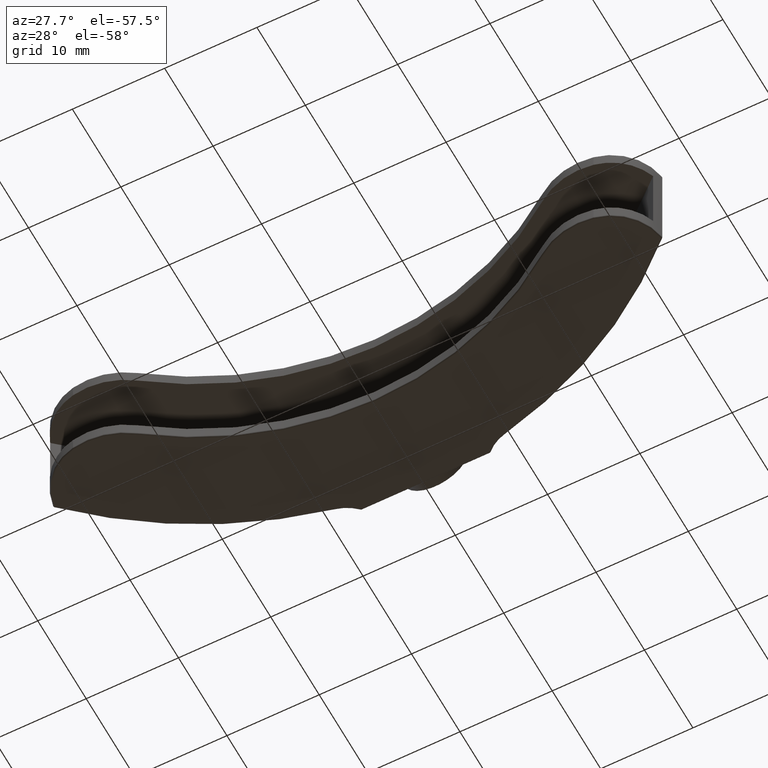
[diagram: clean part render]
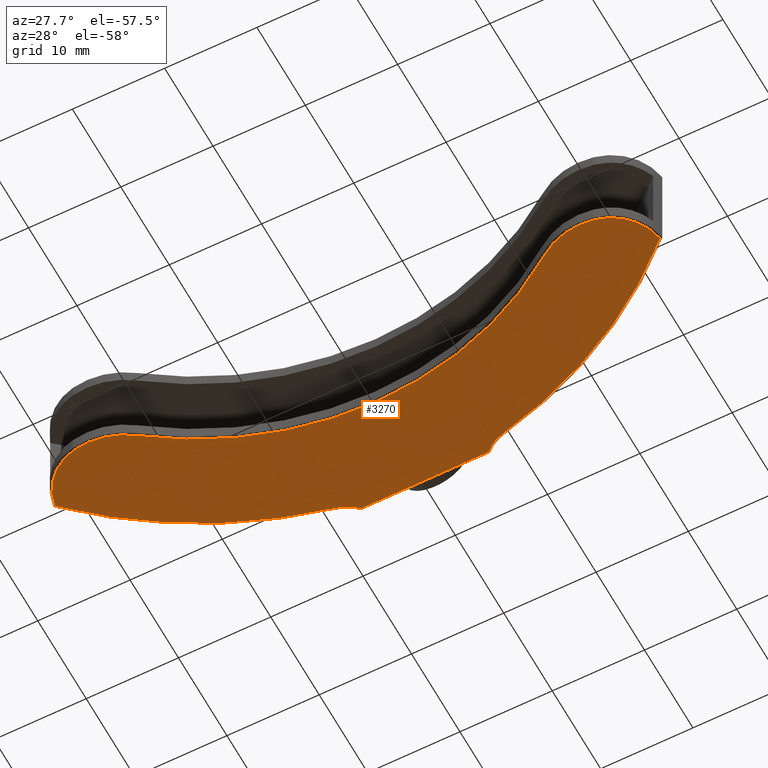
[diagram: same view with one face highlighted and labeled with its STEP entity id]
A machine part, auxiliary view. The second image highlights one B-rep face of the part: STEP entity #3270.
In plain terms, the highlighted planar face has unit normal (-0, 0, -1).
Its self-contained STEP definition (entity closure, byte-faithful):
#37 = EDGE_CURVE ( 'NONE', #2786, #1778, #2823, .T. ) ;
#71 = AXIS2_PLACEMENT_3D ( 'NONE', #3786, #4521, #1229 ) ;
#176 = EDGE_CURVE ( 'NONE', #3043, #3244, #247, .T. ) ;
#232 = CARTESIAN_POINT ( 'NONE',  ( -6.917744942252034512, 3.708048360436082991, 0.0000000000000000000 ) ) ;
#233 = ORIENTED_EDGE ( 'NONE', *, *, #37, .T. ) ;
#247 = CIRCLE ( 'NONE', #627, 5.800000000000003375 ) ;
#288 = DIRECTION ( 'NONE',  ( 0.0000000000000000000, 0.0000000000000000000, 1.000000000000000000 ) ) ;
#303 = AXIS2_PLACEMENT_3D ( 'NONE', #1397, #288, #2538 ) ;
#326 = CIRCLE ( 'NONE', #1101, 4.699999999999994849 ) ;
#327 = EDGE_CURVE ( 'NONE', #3244, #808, #4465, .T. ) ;
#415 = CARTESIAN_POINT ( 'NONE',  ( -28.16906355592864486, -14.99793979079398909, 0.0000000000000000000 ) ) ;
#426 = ORIENTED_EDGE ( 'NONE', *, *, #4546, .T. ) ;
#473 = CIRCLE ( 'NONE', #4766, 7.800000000000001599 ) ;
#619 = EDGE_CURVE ( 'NONE', #3658, #1627, #326, .T. ) ;
#627 = AXIS2_PLACEMENT_3D ( 'NONE', #4548, #2714, #3903 ) ;
#648 = CARTESIAN_POINT ( 'NONE',  ( 22.04413669367827211, -13.62703820016905887, 0.0000000000000000000 ) ) ;
#652 = CARTESIAN_POINT ( 'NONE',  ( 32.78769644247729786, -10.16533705068649951, 0.0000000000000000000 ) ) ;
#808 = VERTEX_POINT ( 'NONE', #648 ) ;
#880 = ORIENTED_EDGE ( 'NONE', *, *, #3413, .T. ) ;
#929 = VERTEX_POINT ( 'NONE', #4539 ) ;
#1023 = ORIENTED_EDGE ( 'NONE', *, *, #327, .T. ) ;
#1101 = AXIS2_PLACEMENT_3D ( 'NONE', #4623, #1267, #2773 ) ;
#1142 = CARTESIAN_POINT ( 'NONE',  ( -10.19474337139716980, 7.077214621602229805, 0.0000000000000000000 ) ) ;
#1183 = FACE_OUTER_BOUND ( 'NONE', #1650, .T. ) ;
#1228 = CIRCLE ( 'NONE', #303, 37.19999999999999574 ) ;
#1229 = DIRECTION ( 'NONE',  ( -1.000000000000000000, 0.0000000000000000000, 0.0000000000000000000 ) ) ;
#1267 = DIRECTION ( 'NONE',  ( 0.0000000000000000000, 0.0000000000000000000, 1.000000000000000000 ) ) ;
#1306 = EDGE_CURVE ( 'NONE', #2051, #1403, #473, .T. ) ;
#1349 = CARTESIAN_POINT ( 'NONE',  ( 26.66629438751404280, -7.344072479005620657, 0.0000000000000000000 ) ) ;
#1356 = DIRECTION ( 'NONE',  ( -0.0000000000000000000, -0.0000000000000000000, -1.000000000000000000 ) ) ;
#1397 = CARTESIAN_POINT ( 'NONE',  ( 0.0000000000000000000, -43.59195163956391639, 0.0000000000000000000 ) ) ;
#1403 = VERTEX_POINT ( 'NONE', #415 ) ;
#1409 = ORIENTED_EDGE ( 'NONE', *, *, #2322, .T. ) ;
#1461 = AXIS2_PLACEMENT_3D ( 'NONE', #2687, #3444, #4174 ) ;
#1472 = AXIS2_PLACEMENT_3D ( 'NONE', #1142, #2192, #3697 ) ;
#1563 = DIRECTION ( 'NONE',  ( 1.000000000000000000, -1.239088197126290817E-16, -0.0000000000000000000 ) ) ;
#1627 = VERTEX_POINT ( 'NONE', #4369 ) ;
#1650 = EDGE_LOOP ( 'NONE', ( #3454, #4791, #426, #1677, #1023, #4555, #3896, #1409, #880, #233 ) ) ;
#1677 = ORIENTED_EDGE ( 'NONE', *, *, #176, .T. ) ;
#1692 = DIRECTION ( 'NONE',  ( -1.000000000000000000, 0.0000000000000000000, 0.0000000000000000000 ) ) ;
#1735 = CARTESIAN_POINT ( 'NONE',  ( -26.66629438751404280, -7.344072479005620657, 0.0000000000000000000 ) ) ;
#1778 = VERTEX_POINT ( 'NONE', #232 ) ;
#2051 = VERTEX_POINT ( 'NONE', #2080 ) ;
#2061 = VECTOR ( 'NONE', #1563, 1000.000000000000000 ) ;
#2080 = CARTESIAN_POINT ( 'NONE',  ( -22.04413669367826856, -13.62703820016905709, 0.0000000000000000000 ) ) ;
#2192 = DIRECTION ( 'NONE',  ( 0.0000000000000000000, 0.0000000000000000000, 1.000000000000000000 ) ) ;
#2295 = LINE ( 'NONE', #4137, #2061 ) ;
#2322 = EDGE_CURVE ( 'NONE', #1403, #929, #2347, .T. ) ;
#2347 = CIRCLE ( 'NONE', #2580, 5.800000000000003375 ) ;
#2451 = CARTESIAN_POINT ( 'NONE',  ( -27.05161981531265880, -9.306602558951354354, 0.0000000000000000000 ) ) ;
#2538 = DIRECTION ( 'NONE',  ( -1.000000000000000000, 0.0000000000000000000, 0.0000000000000000000 ) ) ;
#2580 = AXIS2_PLACEMENT_3D ( 'NONE', #2451, #3945, #3613 ) ;
#2687 = CARTESIAN_POINT ( 'NONE',  ( 1.675373897850213734, -46.11442302957668460, 0.0000000000000000000 ) ) ;
#2710 = CARTESIAN_POINT ( 'NONE',  ( 28.16906355592864841, -14.99793979079398554, 0.0000000000000000000 ) ) ;
#2714 = DIRECTION ( 'NONE',  ( -0.0000000000000000000, -0.0000000000000000000, -1.000000000000000000 ) ) ;
#2773 = DIRECTION ( 'NONE',  ( -1.000000000000000000, 9.227252531791537966E-16, 0.0000000000000000000 ) ) ;
#2786 = VERTEX_POINT ( 'NONE', #4348 ) ;
#2823 = CIRCLE ( 'NONE', #1472, 4.699999999999995737 ) ;
#2852 = EDGE_CURVE ( 'NONE', #808, #2051, #1228, .T. ) ;
#2877 = DIRECTION ( 'NONE',  ( -1.000000000000000000, 0.0000000000000000000, 0.0000000000000000000 ) ) ;
#3043 = VERTEX_POINT ( 'NONE', #652 ) ;
#3132 = AXIS2_PLACEMENT_3D ( 'NONE', #1349, #4684, #1692 ) ;
#3237 = DIRECTION ( 'NONE',  ( -1.000000000000000000, 0.0000000000000000000, 0.0000000000000000000 ) ) ;
#3244 = VERTEX_POINT ( 'NONE', #2710 ) ;
#3270 = ADVANCED_FACE ( 'NONE', ( #1183 ), #4098, .T. ) ;
#3413 = EDGE_CURVE ( 'NONE', #929, #2786, #3586, .T. ) ;
#3444 = DIRECTION ( 'NONE',  ( -0.0000000000000000000, -0.0000000000000000000, -1.000000000000000000 ) ) ;
#3454 = ORIENTED_EDGE ( 'NONE', *, *, #4784, .T. ) ;
#3586 = CIRCLE ( 'NONE', #1461, 49.80000000000000426 ) ;
#3613 = DIRECTION ( 'NONE',  ( -1.000000000000000000, 0.0000000000000000000, 0.0000000000000000000 ) ) ;
#3658 = VERTEX_POINT ( 'NONE', #4654 ) ;
#3697 = DIRECTION ( 'NONE',  ( -1.000000000000000000, 9.227252531791535994E-16, 0.0000000000000000000 ) ) ;
#3786 = CARTESIAN_POINT ( 'NONE',  ( -10.19474337139716980, 7.077214621602229805, 0.0000000000000000000 ) ) ;
#3896 = ORIENTED_EDGE ( 'NONE', *, *, #1306, .T. ) ;
#3903 = DIRECTION ( 'NONE',  ( -1.000000000000000000, 0.0000000000000000000, 0.0000000000000000000 ) ) ;
#3945 = DIRECTION ( 'NONE',  ( -0.0000000000000000000, -0.0000000000000000000, -1.000000000000000000 ) ) ;
#3984 = CIRCLE ( 'NONE', #4679, 49.80000000000000426 ) ;
#3996 = CARTESIAN_POINT ( 'NONE',  ( -1.675373897850213734, -46.11442302957668460, 0.0000000000000000000 ) ) ;
#4098 = PLANE ( 'NONE',  #71 ) ;
#4137 = CARTESIAN_POINT ( 'NONE',  ( 7.000000000000000888, 3.708048360436080770, 0.0000000000000000000 ) ) ;
#4174 = DIRECTION ( 'NONE',  ( -1.000000000000000000, 0.0000000000000000000, 0.0000000000000000000 ) ) ;
#4348 = CARTESIAN_POINT ( 'NONE',  ( -9.171081882122619433, 2.490045870032684849, 0.0000000000000000000 ) ) ;
#4369 = CARTESIAN_POINT ( 'NONE',  ( 9.171081882122626538, 2.490045870032690178, 0.0000000000000000000 ) ) ;
#4387 = DIRECTION ( 'NONE',  ( -0.0000000000000000000, -0.0000000000000000000, -1.000000000000000000 ) ) ;
#4465 = CIRCLE ( 'NONE', #3132, 7.799999999999998046 ) ;
#4521 = DIRECTION ( 'NONE',  ( -0.0000000000000000000, 0.0000000000000000000, -1.000000000000000000 ) ) ;
#4539 = CARTESIAN_POINT ( 'NONE',  ( -32.78769644247729786, -10.16533705068649951, 0.0000000000000000000 ) ) ;
#4546 = EDGE_CURVE ( 'NONE', #1627, #3043, #3984, .T. ) ;
#4548 = CARTESIAN_POINT ( 'NONE',  ( 27.05161981531265880, -9.306602558951354354, 0.0000000000000000000 ) ) ;
#4555 = ORIENTED_EDGE ( 'NONE', *, *, #2852, .T. ) ;
#4623 = CARTESIAN_POINT ( 'NONE',  ( 10.19474337139716980, 7.077214621602229805, 0.0000000000000000000 ) ) ;
#4654 = CARTESIAN_POINT ( 'NONE',  ( 6.917744942252036289, 3.708048360436080770, 0.0000000000000000000 ) ) ;
#4679 = AXIS2_PLACEMENT_3D ( 'NONE', #3996, #4387, #2877 ) ;
#4684 = DIRECTION ( 'NONE',  ( -0.0000000000000000000, -0.0000000000000000000, -1.000000000000000000 ) ) ;
#4766 = AXIS2_PLACEMENT_3D ( 'NONE', #1735, #1356, #3237 ) ;
#4784 = EDGE_CURVE ( 'NONE', #1778, #3658, #2295, .T. ) ;
#4791 = ORIENTED_EDGE ( 'NONE', *, *, #619, .T. ) ;